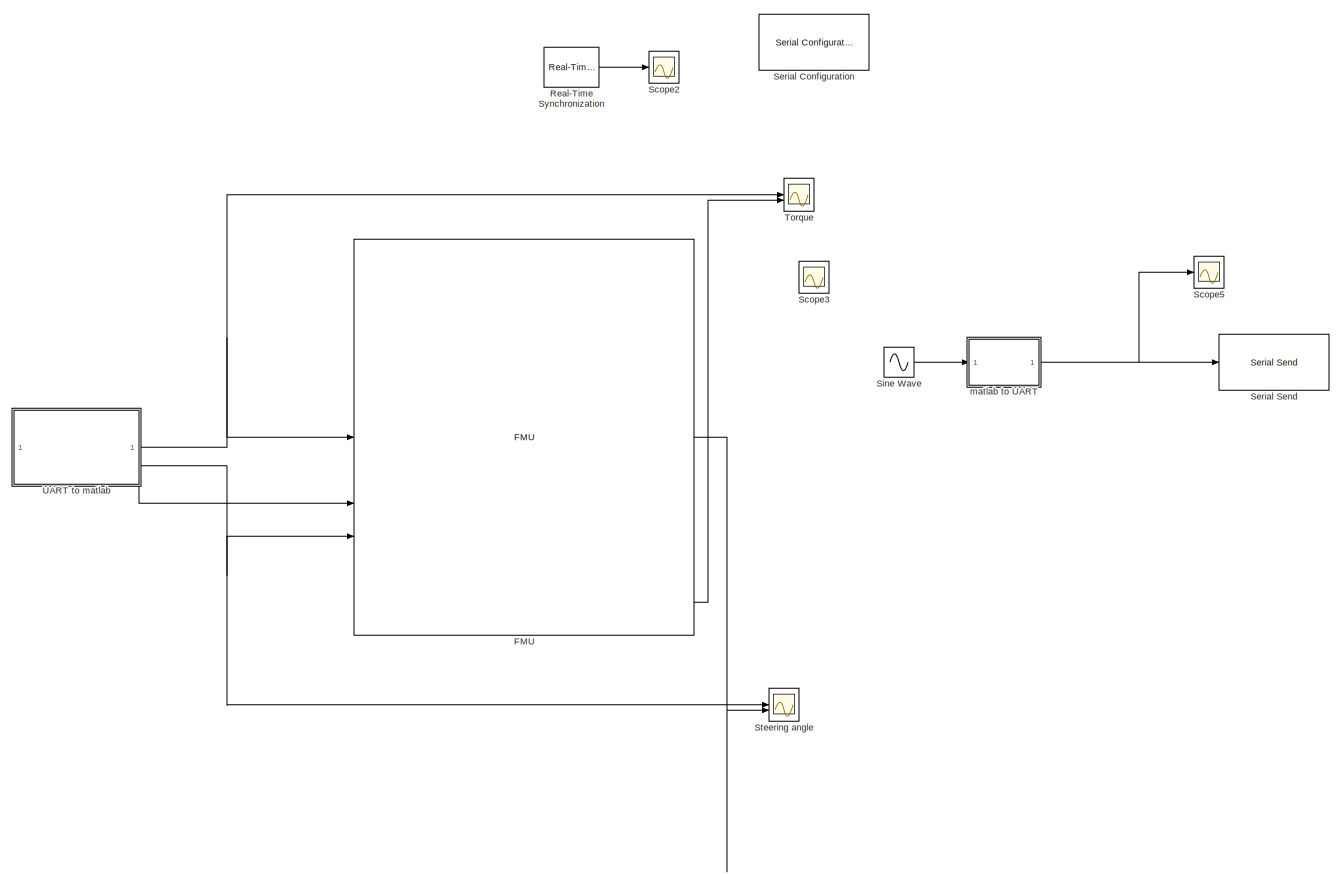
[diagram: root canvas - part 1/1, most of the canvas]
MODEL slx_af4664fb3598
KIND model
CONFIG AbsTol = auto
CONFIG EnableMultiTasking = off
CONFIG FixedStep = auto
CONFIG MaxStep = auto
CONFIG MinStep = auto
CONFIG RelTol = 1e-3
CONFIG SampleTimeConstraint = Unconstrained
CONFIG SolverName = VariableStepAuto
CONFIG StartTime = 0.0
CONFIG StopTime = inf
BLOCK [FMU] FMU
  FMUInitializeEnumObject = off
  FMUMode = ModelExchange
  FMUName = ThreeWheelVehicle3FMUpid.fmu
  MaskDisplay = disp('ThreeWheelVehicle3FMU');\nport_label('output',1,'outActualSteeringAngle');\nport_label('output',2,'outAngvFront');\nport_label('output',3,'outAngvLeft');\nport_label('output',4,'outAngvRight');\nport_label('output',5,'outCarAcc');\nport_label('output',6,'outCarAngle');\nport_label('output',7,'outCarAngularAcc');\nport_label('output',8,'outCarAngularVelocity');\nport_label('output',9,'outCarDistance')...<+1196ch>
  MaskPromptString = airResistanceLongitudinal|backLengthm|body2|c_rollFRolling resistance|c_rollLRolling resistance|c_rollRRolling resistance|dragCoefAir drag coefficient|front|front2|frontLengthm|frontTrail|frontWheel|gm/s2 Gravity|gearRatio|inertiaBodykgm2|inertiaWheelF|inertiaWheelL|inertiaWheelR|masskg|massCenterZm height to COM|muAF|muAL|muAR|muSF|muSL|muSR|neg|neg2|planarWorld|positionPhi|rear|rearLeft|rearLeft...<+2735ch>
  MaskType = ThreeWheelVehicle3FMU [Model Exchange, v2.0]
  MultithreadedSim = off
  airResistanceLongitudinal = struct('r',[0.0,1.0],'rho',1.18)
  backLength = 0.5
  body2 = struct('I',1e-08,'m',0.1)
  body2_sphere_shapeType = sphere
  body_sphere_shapeType = sphere
  c_rollF = 0.05
  c_rollL = 0.05
  c_rollR = 0.05
  dragCoef = 0.5
  front = struct('r',[0.0],'width',0.2)
  front2 = struct('r',[1e-10,0.0])
  front2_cylinder_shapeType = cylinder
  frontLength = 1.5
  frontTrail = struct('r',[0.0,-0.1])
  frontTrail_cylinder_shapeType = cylinder
  frontWheel = struct('diameter',0.1,'r',[0.0,1.0],'v0_roll',0.1)
  frontWheel_cylinder_shapeType = cylinder
  frontWheel_rim1_shapeType = cylinder
  frontWheel_rim2_shapeType = cylinder
  front_cylinder_shapeType = cylinder
  g = 9.82
  gearRatio = 0.125
  inertiaBody = 350.0
  inertiaWheelF = 0.3
  inertiaWheelL = 0.3
  inertiaWheelR = 0.3
  mass = 350.0
  massCenterZ = 0.3
  muAF = 1.0
  muAL = 1.0
  muAR = 1.0
  muSF = 0.7
  muSL = 0.7
  muSR = 0.7
  neg = struct('k',-1.0)
  neg2 = struct('k',-1.0)
  planarWorld = struct('constantGravity',[0.0,0.0],'defaultFrameDiameterFraction',40.0,'defaultN_to_m',1000.0,'defaultNm_to_m',1000.0,'defaultSpecularCoefficient',0.7,'defaultWidthFraction',20.0,'defaultZPosition',0.0,'gravityArrowTail',[0.0,0.0],'nominalLength',1.0)
  planarWorld_label1 = x
  planarWorld_label2 = y
  positionPhi = struct('f_crit',50.0)
  rear = struct('r',[0.0],'width',0.2)
  rearLeft = struct('r',[0,0.0])
  rearLeftWheel = struct('diameter',0.1,'r',[0.0,1.0],'v0_roll',0.1)
  rearLeftWheel_cylinder_shapeType = cylinder
  rearLeftWheel_rim1_shapeType = cylinder
  rearLeftWheel_rim2_shapeType = cylinder
  rearLeft_cylinder_shapeType = cylinder
  rearRight = struct('r',[0,0.0])
  rearRightWheel = struct('diameter',0.1,'r',[0.0,1.0],'v0_roll',0.1)
  rearRightWheel_cylinder_shapeType = cylinder
  rearRightWheel_rim1_shapeType = cylinder
  rearRightWheel_rim2_shapeType = cylinder
  rearRight_cylinder_shapeType = cylinder
  rear_cylinder_shapeType = cylinder
  revolute_cylinder_shapeType = cylinder
  sAdF = 0.07000000000000001
  sAdL = 0.07000000000000001
  sAdR = 0.07000000000000001
  sSlF = 0.2
  sSlL = 0.2
  sSlR = 0.2
  speedStart = 11.11111111111111
  turnRadiusMAX = 1000.0
  vAdF = 0.1
  vAdL = 0.1
  vAdR = 0.1
  vSlF = 0.3
  vSlL = 0.3
  vSlR = 0.3
  vehicleFrontArea = 1.5
  vehicleWidth = 1.0
  wheelRadiusF = 0.28
  wheelRadiusL = 0.28
  wheelRadiusR = 0.28
BLOCK [Reference] Real-Time Synchronization  REF=sldrtlib/Real-Time
Synchronization
  SourceBlock = sldrtlib/Real-Time\nSynchronization
  SourceType = Simulink Desktop Real-Time Synchronization
BLOCK [Scope] Scope2
  Floating = off
  NumInputPorts = 1
  ScopeSpecificationString = Simulink.scopes.TimeScopeBlockCfg('CurrentConfiguration', extmgr.ConfigurationSet(extmgr.Configuration('Core','General UI',true),extmgr.Configuration('Core','Source UI',true),extmgr.Configuration('Sources','WiredSimulink',true),extmgr.Configuration('Visuals','Time Domain',true,'SerializedDisplays',{struct('MinYLimReal','-0.85076','MaxYLimReal','12.375','YLabelReal','','MinYLimMag','0.00000','MaxYL...<+1415ch>
BLOCK [Scope] Scope3
  Floating = off
  NumInputPorts = 1
  ScopeSpecificationString = Simulink.scopes.TimeScopeBlockCfg('CurrentConfiguration', extmgr.ConfigurationSet(extmgr.Configuration('Core','General UI',true),extmgr.Configuration('Core','Source UI',true),extmgr.Configuration('Sources','WiredSimulink',true,'DataLoggingVariableName','ScopeData3'),extmgr.Configuration('Visuals','Time Domain',true,'SerializedDisplays',{struct('MinYLimReal','-1.00000','MaxYLimReal','1.00000','YLab...<+1428ch>
BLOCK [Scope] Scope5
  Floating = off
  NumInputPorts = 1
  ScopeSpecificationString = Simulink.scopes.TimeScopeBlockCfg('CurrentConfiguration', extmgr.ConfigurationSet(extmgr.Configuration('Core','General UI',true),extmgr.Configuration('Core','Source UI',true),extmgr.Configuration('Sources','WiredSimulink',true,'DataLoggingVariableName','ScopeData6'),extmgr.Configuration('Visuals','Time Domain',true,'SerializedDisplays',{struct('MinYLimReal','-31.875','MaxYLimReal','286.875','YLabe...<+1531ch>
BLOCK [Reference] Serial Configuration  REF=instrumentseriallib/Serial Configuration
  LibrarySourceBlock = embeddedtargetslib/Host Communication/Serial Configuration
  Priority = -200000
  SourceBlock = instrumentseriallib/Serial Configuration
  SourceType = system.SerialConfiguration
BLOCK [Reference] Serial Send  REF=instrumentseriallib/Serial Send
  LibrarySourceBlock = embeddedtargetslib/Host Communication/Serial Send
  Priority = 1
  SourceBlock = instrumentseriallib/Serial Send
  SourceType = system.SerialSend
BLOCK [Sin] Sine Wave
  SampleTime = 0
BLOCK [Scope] Steering angle
  Floating = off
  NumInputPorts = 2
  ScopeSpecificationString = Simulink.scopes.TimeScopeBlockCfg('CurrentConfiguration', extmgr.ConfigurationSet(extmgr.Configuration('Core','General UI',true),extmgr.Configuration('Core','Source UI',true),extmgr.Configuration('Sources','WiredSimulink',true,'DataLoggingVariableName','ScopeData2'),extmgr.Configuration('Visuals','Time Domain',true,'SerializedDisplays',{struct('MinYLimReal','-3.75','MaxYLimReal','33.75','YLabelRea...<+1484ch>
BLOCK [Scope] Torque
  Floating = off
  NumInputPorts = 2
  ScopeSpecificationString = Simulink.scopes.TimeScopeBlockCfg('CurrentConfiguration', extmgr.ConfigurationSet(extmgr.Configuration('Core','General UI',true),extmgr.Configuration('Core','Source UI',true),extmgr.Configuration('Sources','WiredSimulink',true,'DataLoggingVariableName','ScopeData4'),extmgr.Configuration('Visuals','Time Domain',true,'SerializedDisplays',{struct('MinYLimReal','-25.00038','MaxYLimReal','225.00343','Y...<+1506ch>
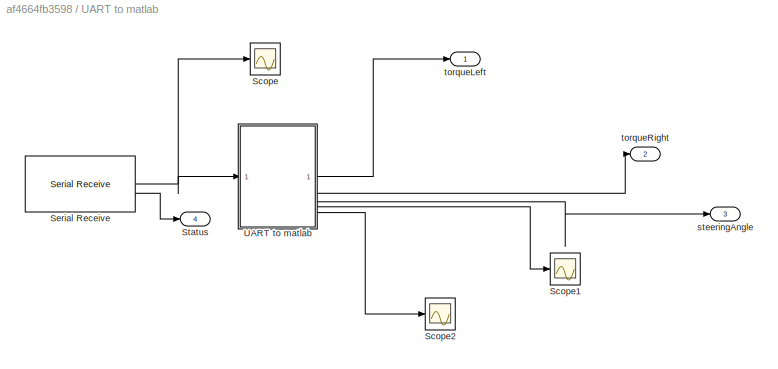
BLOCK [SubSystem] UART to matlab
BLOCK [Scope] UART to matlab/Scope
  Floating = off
  NumInputPorts = 1
  ScopeSpecificationString = Simulink.scopes.TimeScopeBlockCfg('CurrentConfiguration', extmgr.ConfigurationSet(extmgr.Configuration('Core','General UI',true),extmgr.Configuration('Core','Source UI',true),extmgr.Configuration('Sources','WiredSimulink',true,'DataLoggingVariableName','ScopeData5'),extmgr.Configuration('Visuals','Time Domain',true,'SerializedDisplays',{struct('MinYLimReal','-31.875','MaxYLimReal','286.875','YLabe...<+1687ch>
BLOCK [Scope] UART to matlab/Scope1
  Floating = off
  NumInputPorts = 1
  ScopeSpecificationString = Simulink.scopes.TimeScopeBlockCfg('CurrentConfiguration', extmgr.ConfigurationSet(extmgr.Configuration('Core','General UI',true),extmgr.Configuration('Core','Source UI',true),extmgr.Configuration('Sources','WiredSimulink',true,'DataLoggingVariableName','ScopeData7','DataLogging',true,'DataLoggingSaveFormat','StructureWithTime'),extmgr.Configuration('Visuals','Time Domain',true,'SerializedDisplays'...<+1575ch>
BLOCK [Scope] UART to matlab/Scope2
  Floating = off
  NumInputPorts = 1
  ScopeSpecificationString = Simulink.scopes.TimeScopeBlockCfg('CurrentConfiguration', extmgr.ConfigurationSet(extmgr.Configuration('Core','General UI',true),extmgr.Configuration('Core','Source UI',true),extmgr.Configuration('Sources','WiredSimulink',true,'DataLoggingVariableName','ScopeData8','DataLogging',true,'DataLoggingSaveFormat','StructureWithTime'),extmgr.Configuration('Visuals','Time Domain',true,'SerializedDisplays'...<+1574ch>
BLOCK [Reference] UART to matlab/Serial Receive  REF=instrumentseriallib/Serial Receive
  LibrarySourceBlock = embeddedtargetslib/Host Communication/Serial Receive
  Priority = 1
  SourceBlock = instrumentseriallib/Serial Receive
  SourceType = system.SerialReceive
BLOCK [Outport] UART to matlab/Status
  Port = 4
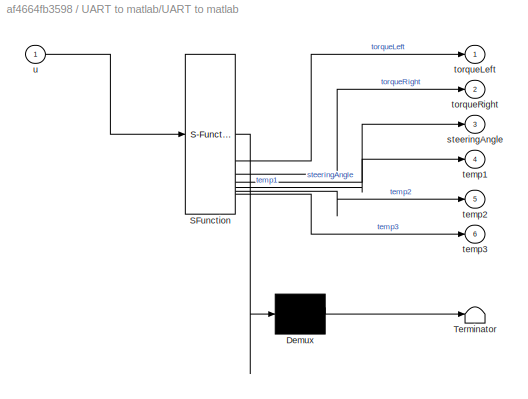
BLOCK [SubSystem] UART to matlab/UART to matlab
  ErrorFcn = Stateflow.Translate.translate
  PermitHierarchicalResolution = ExplicitOnly
  SFBlockType = MATLAB Function
  TreatAsAtomicUnit = on
BLOCK [Demux] UART to matlab/UART to matlab/ Demux 
  Outputs = 1
BLOCK [S-Function] UART to matlab/UART to matlab/ SFunction 
  EnableBusSupport = on
  FunctionName = sf_sfun
  PortCounts = [1 7]
  SFcnIsStateOwnerBlock = off
  SFunctionDeploymentMode = off
  Tag = Stateflow S-Function 1
BLOCK [Terminator] UART to matlab/UART to matlab/ Terminator 
BLOCK [Outport] UART to matlab/UART to matlab/steeringAngle
  Port = 3
BLOCK [Outport] UART to matlab/UART to matlab/temp1
  Port = 4
BLOCK [Outport] UART to matlab/UART to matlab/temp2
  Port = 5
BLOCK [Outport] UART to matlab/UART to matlab/temp3
  Port = 6
BLOCK [Outport] UART to matlab/UART to matlab/torqueLeft
BLOCK [Outport] UART to matlab/UART to matlab/torqueRight
  Port = 2
BLOCK [Inport] UART to matlab/UART to matlab/u
BLOCK [Outport] UART to matlab/steeringAngle
  OutDataTypeStr = double
  Port = 3
BLOCK [Outport] UART to matlab/torqueLeft
  OutDataTypeStr = double
BLOCK [Outport] UART to matlab/torqueRight
  OutDataTypeStr = double
  Port = 2
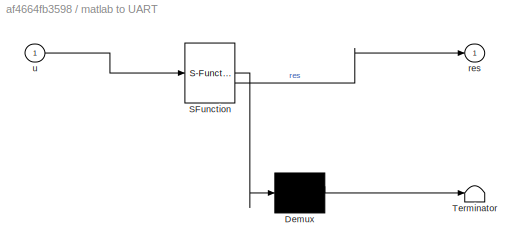
BLOCK [SubSystem] matlab to UART
  ErrorFcn = Stateflow.Translate.translate
  PermitHierarchicalResolution = ExplicitOnly
  SFBlockType = MATLAB Function
  TreatAsAtomicUnit = on
BLOCK [Demux] matlab to UART/ Demux 
  Outputs = 1
BLOCK [S-Function] matlab to UART/ SFunction 
  EnableBusSupport = on
  FunctionName = sf_sfun
  PortCounts = [1 2]
  SFcnIsStateOwnerBlock = off
  SFunctionDeploymentMode = off
  Tag = Stateflow S-Function 2
BLOCK [Terminator] matlab to UART/ Terminator 
BLOCK [Outport] matlab to UART/res
BLOCK [Inport] matlab to UART/u
LINE FMU:1 -> Steering angle:2
LINE FMU:11 -> Torque:2
LINE Real-Time Synchronization:1 -> Scope2:1
LINE Sine Wave:1 -> matlab to UART:1
NET UART to matlab/Serial Receive:1 -> UART to matlab/Scope:1, UART to matlab/UART to matlab:1
LINE UART to matlab/Serial Receive:2 -> UART to matlab/Status:1
LINE UART to matlab/UART to matlab:1 -> UART to matlab/torqueLeft:1
LINE UART to matlab/UART to matlab:2 -> UART to matlab/torqueRight:1
LINE UART to matlab/UART to matlab:3 -> UART to matlab/steeringAngle:1
LINE UART to matlab/UART to matlab:4 -> UART to matlab/Scope1:1
LINE UART to matlab/UART to matlab:6 -> UART to matlab/Scope2:1
NET UART to matlab:1 -> FMU:1, Torque:1
LINE UART to matlab:2 -> FMU:2
NET UART to matlab:3 -> FMU:3, Steering angle:1
NET matlab to UART:1 -> Scope5:1, Serial Send:1
note: NET lines group one-source signal fan-out (src -> all destinations, sorted); 1:1 wires keep LINE
CHART UART to matlab/UART to matlab states=1 transitions=1
  STATE_LABEL 'eML_blk_kernel()'
  STATE_LABEL 'SCRIPT:\nfunction [torqueLeft, torqueRight, steeringAngle, temp1, temp2, temp3] = fcn(u)\n    temp1 = flip(u(1:4));\n    torqueLeft = cast(typecast(temp1, "single"), "double");\n    temp2 = flip(u(5:8));\n    torqueRight = cast(typecast(temp2, "single"), "double");\n    temp3 = flip(u(9:12));\n    steeringAngle = cast(typecast(temp3, "single"), "double");\nend\n'
CHART matlab to UART states=1 transitions=1
  STATE_LABEL 'eML_blk_kernel()'
  STATE_LABEL 'SCRIPT:\nfunction res = fcn(u)\n    % If it is a noninteger => convert to float.\ntemp = cast(u,"single");\ntemp = typecast(temp, "uint8");\n\nres = [1, 0, 0, 0, temp];'
CHART  states=0 transitions=0
CHART  states=0 transitions=0
